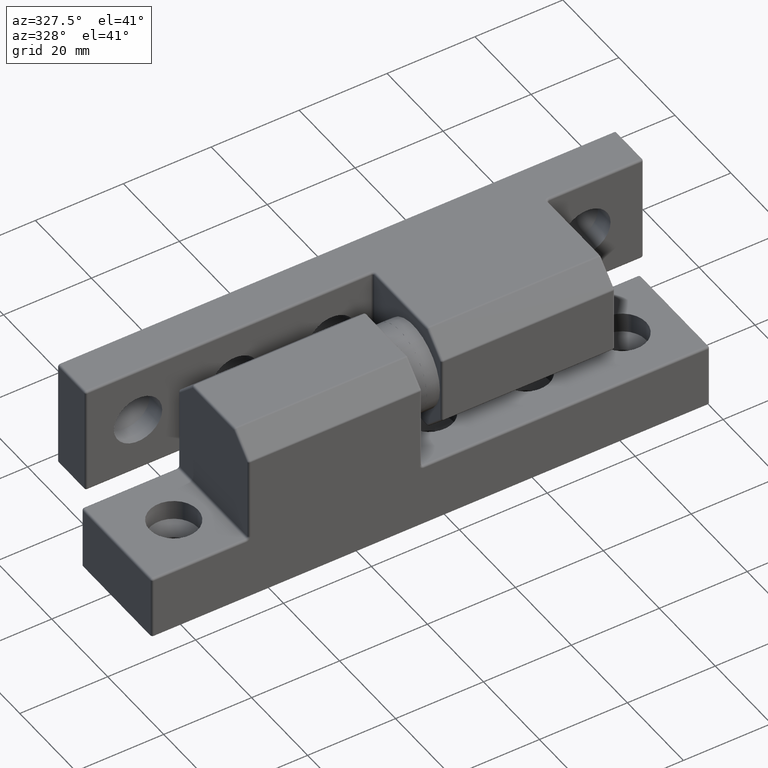
[diagram: clean part render]
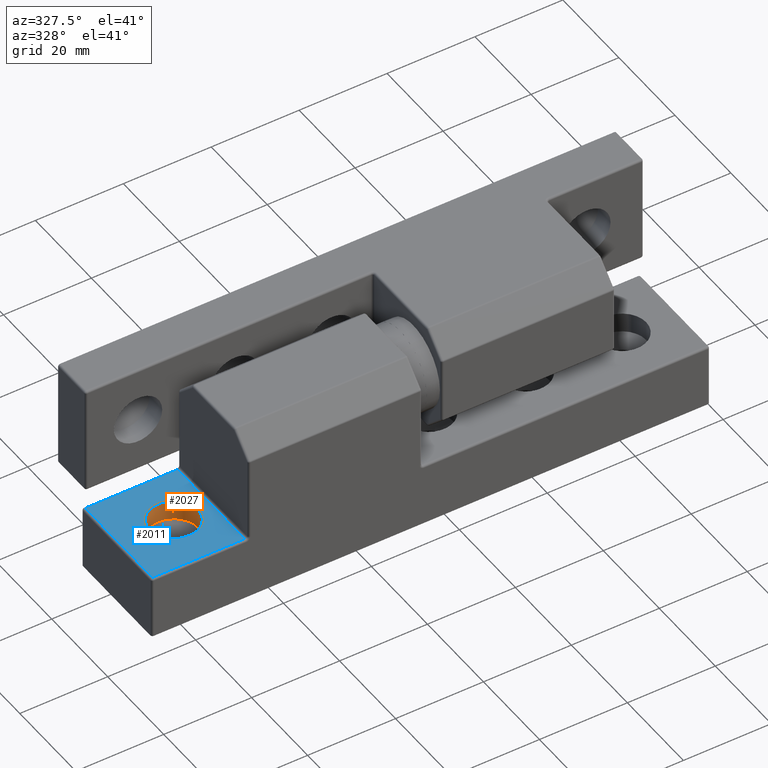
[diagram: same view with the hole feature highlighted: cylindrical wall and planar end face, labeled with their STEP entity ids]
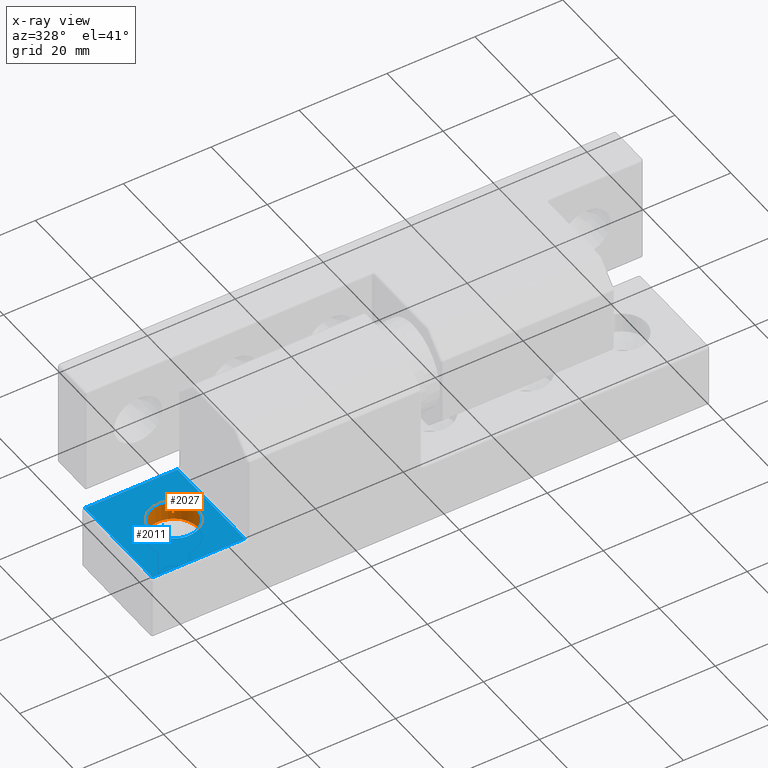
[diagram: x-ray of the same camera — body ghosted, the hole faces saturated]
A machine part, auxiliary view. The highlighted faces form one hole feature of diameter 11 mm: the cylindrical wall (entity #2027, orange) and its adjacent planar end face (entity #2011, blue) — they share a circular edge in the B-rep.
The next image is the same camera in x-ray (body ghosted, the hole faces saturated) — the bore reads through the body.
Wall:
#68=FACE_BOUND('',#675,.T.);
#400=CYLINDRICAL_SURFACE('',#2256,5.5);
#506=FACE_OUTER_BOUND('',#674,.T.);
#674=EDGE_LOOP('',(#1636));
#675=EDGE_LOOP('',(#1637));
#860=CIRCLE('',#2231,5.5);
#864=CIRCLE('',#2244,5.5);
#1024=VERTEX_POINT('',#3415);
#1028=VERTEX_POINT('',#3432);
#1244=EDGE_CURVE('',#1024,#1024,#860,.T.);
#1248=EDGE_CURVE('',#1028,#1028,#864,.T.);
#1636=ORIENTED_EDGE('',*,*,#1244,.F.);
#1637=ORIENTED_EDGE('',*,*,#1248,.F.);
#2027=ADVANCED_FACE('',(#506,#68),#400,.F.);
#2231=AXIS2_PLACEMENT_3D('',#3416,#2716,#2717);
#2244=AXIS2_PLACEMENT_3D('',#3433,#2742,#2743);
#2256=AXIS2_PLACEMENT_3D('',#3450,#2766,#2767);
#2716=DIRECTION('center_axis',(0.,0.,-1.));
#2717=DIRECTION('ref_axis',(1.,0.,0.));
#2742=DIRECTION('center_axis',(0.,0.,1.));
#2743=DIRECTION('ref_axis',(1.,0.,0.));
#2766=DIRECTION('center_axis',(0.,0.,1.));
#2767=DIRECTION('ref_axis',(1.,0.,0.));
#3415=CARTESIAN_POINT('',(-45.,0.,14.5));
#3416=CARTESIAN_POINT('Origin',(-50.5,0.,14.5));
#3432=CARTESIAN_POINT('',(-45.,0.,10.));
#3433=CARTESIAN_POINT('Origin',(-50.5,0.,10.));
#3450=CARTESIAN_POINT('Origin',(-50.5,0.,12.25));
End face:
#57=FACE_BOUND('',#648,.T.);
#109=PLANE('',#2230);
#158=LINE('',#3280,#270);
#164=LINE('',#3321,#276);
#180=LINE('',#3366,#292);
#190=LINE('',#3381,#302);
#270=VECTOR('',#2550,21.);
#276=VECTOR('',#2598,21.);
#292=VECTOR('',#2654,24.);
#302=VECTOR('',#2674,24.);
#490=FACE_OUTER_BOUND('',#647,.T.);
#647=EDGE_LOOP('',(#1592,#1593,#1594,#1595));
#648=EDGE_LOOP('',(#1596));
#860=CIRCLE('',#2231,5.5);
#965=VERTEX_POINT('',#3201);
#985=VERTEX_POINT('',#3259);
#991=VERTEX_POINT('',#3274);
#1003=VERTEX_POINT('',#3312);
#1024=VERTEX_POINT('',#3415);
#1171=EDGE_CURVE('',#965,#991,#158,.T.);
#1191=EDGE_CURVE('',#1003,#985,#164,.T.);
#1216=EDGE_CURVE('',#991,#1003,#180,.T.);
#1226=EDGE_CURVE('',#985,#965,#190,.T.);
#1244=EDGE_CURVE('',#1024,#1024,#860,.T.);
#1592=ORIENTED_EDGE('',*,*,#1191,.F.);
#1593=ORIENTED_EDGE('',*,*,#1216,.F.);
#1594=ORIENTED_EDGE('',*,*,#1171,.F.);
#1595=ORIENTED_EDGE('',*,*,#1226,.F.);
#1596=ORIENTED_EDGE('',*,*,#1244,.T.);
#2011=ADVANCED_FACE('',(#490,#57),#109,.T.);
#2230=AXIS2_PLACEMENT_3D('',#3414,#2714,#2715);
#2231=AXIS2_PLACEMENT_3D('',#3416,#2716,#2717);
#2550=DIRECTION('',(1.,1.3987061727561E-16,0.));
#2598=DIRECTION('',(-1.,0.,0.));
#2654=DIRECTION('',(3.5527136788005E-16,-1.,0.));
#2674=DIRECTION('',(-3.5527136788005E-16,1.,0.));
#2714=DIRECTION('center_axis',(0.,0.,1.));
#2715=DIRECTION('ref_axis',(1.,0.,0.));
#2716=DIRECTION('center_axis',(0.,0.,-1.));
#2717=DIRECTION('ref_axis',(1.,0.,0.));
#3201=CARTESIAN_POINT('',(-63.,12.,14.5));
#3259=CARTESIAN_POINT('',(-63.,-12.,14.5));
#3274=CARTESIAN_POINT('',(-42.,12.,14.5));
#3280=CARTESIAN_POINT('',(31.75,12.,14.5));
#3312=CARTESIAN_POINT('',(-42.,-12.,14.5));
#3321=CARTESIAN_POINT('',(-31.75,-12.,14.5));
#3366=CARTESIAN_POINT('',(-42.,-5.70962258268357E-15,14.5));
#3381=CARTESIAN_POINT('',(-63.,6.24999999999998,14.5));
#3414=CARTESIAN_POINT('Origin',(2.66453525910038E-14,-2.22044604925031E-15,
14.5));
#3415=CARTESIAN_POINT('',(-45.,0.,14.5));
#3416=CARTESIAN_POINT('Origin',(-50.5,0.,14.5));